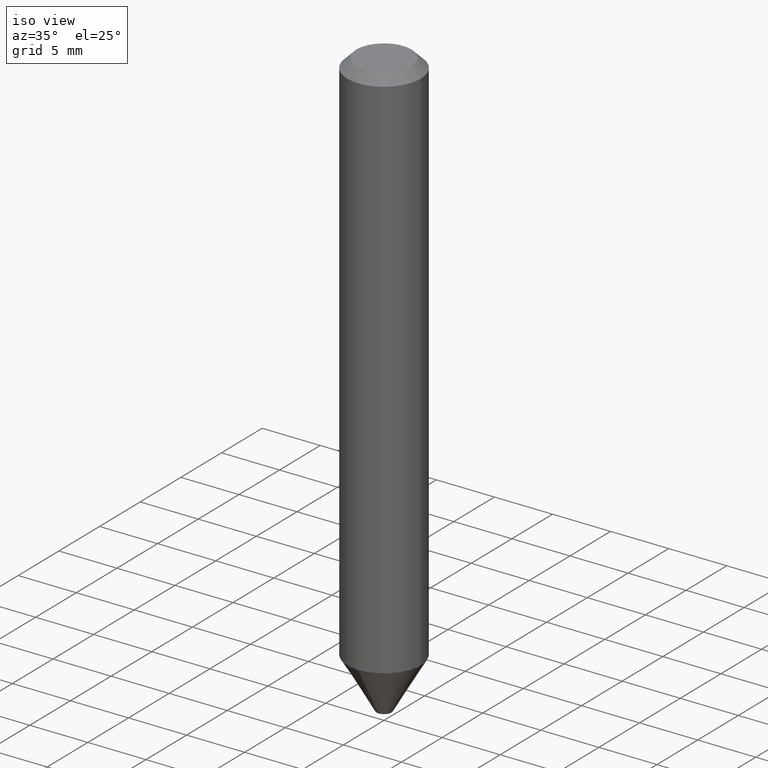
[diagram: clean part render]
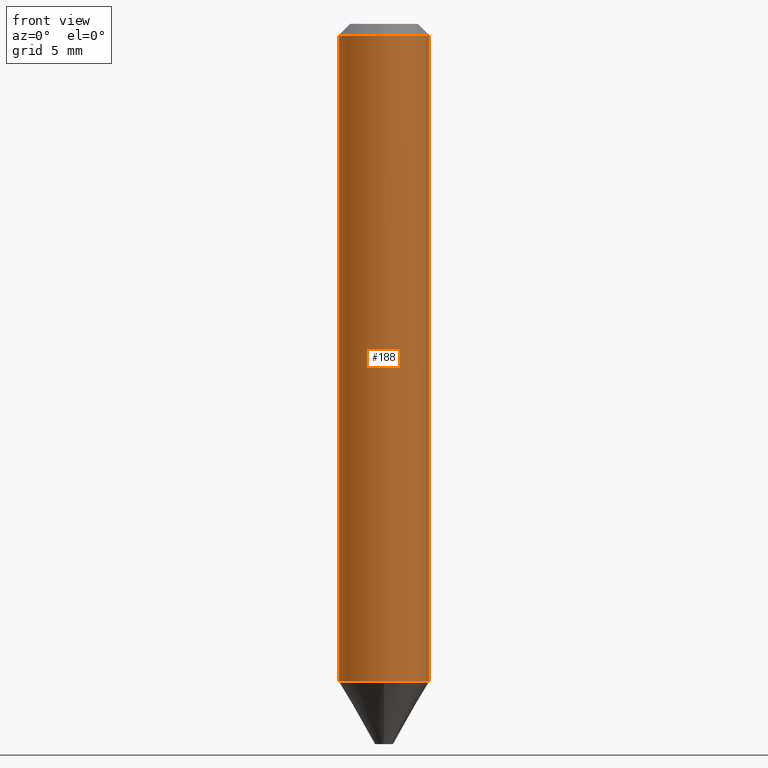
[diagram: tour spotlight — one face highlighted and labeled with its STEP entity id]
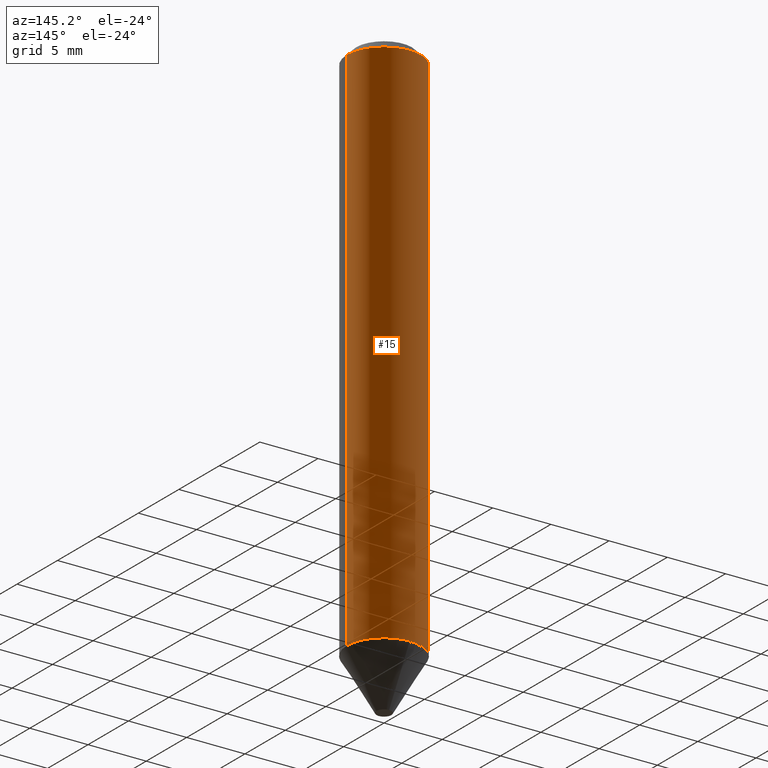
[diagram: tour spotlight — one face highlighted and labeled with its STEP entity id]
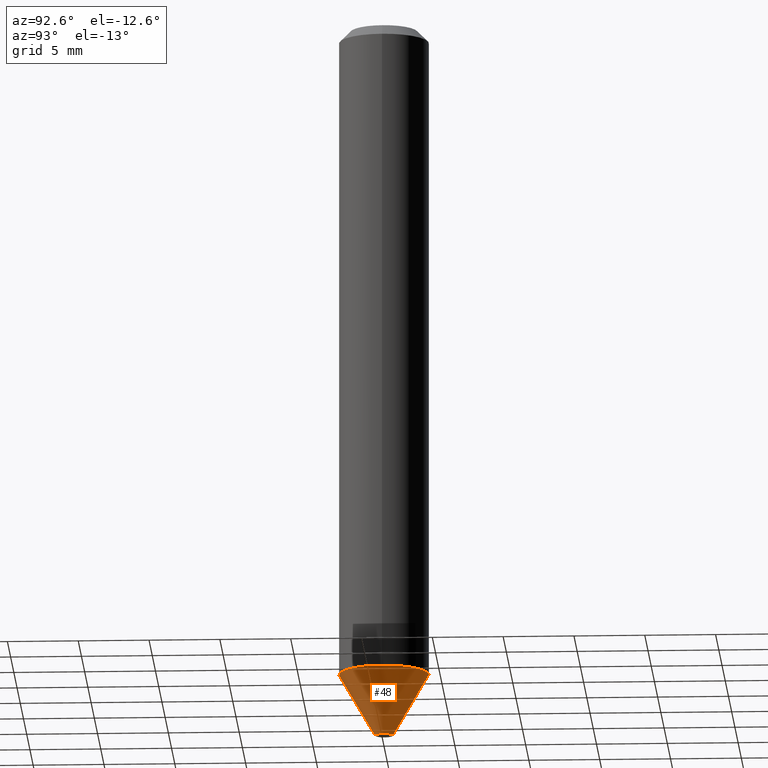
[diagram: tour spotlight — one face highlighted and labeled with its STEP entity id]
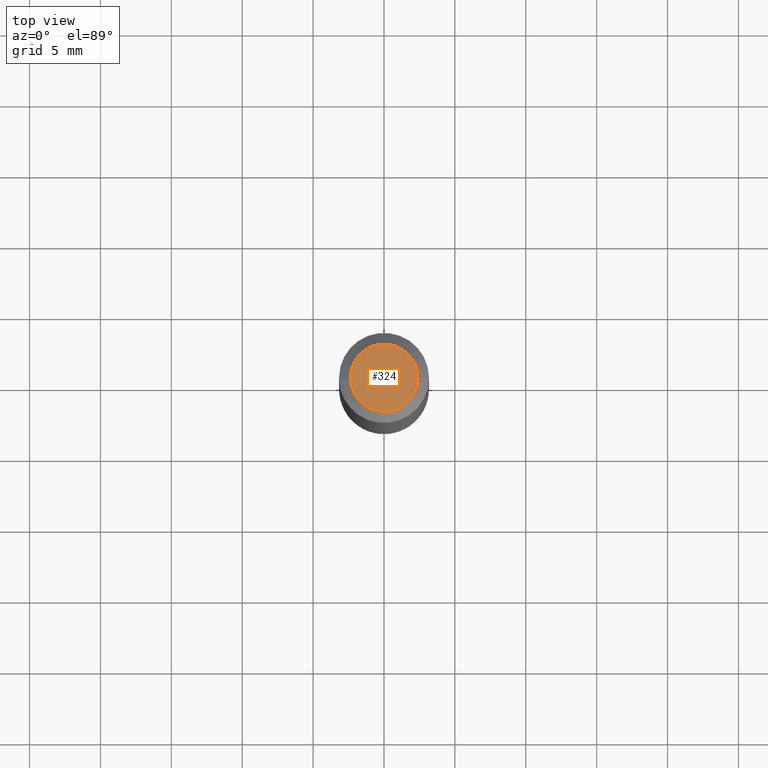
[diagram: tour spotlight — one face highlighted and labeled with its STEP entity id]
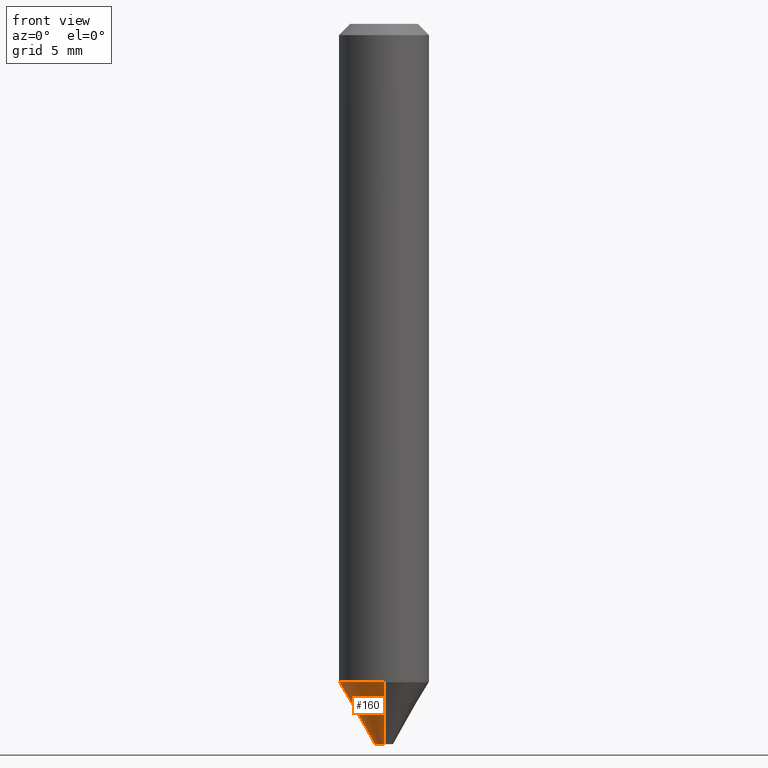
[diagram: tour spotlight — one face highlighted and labeled with its STEP entity id]
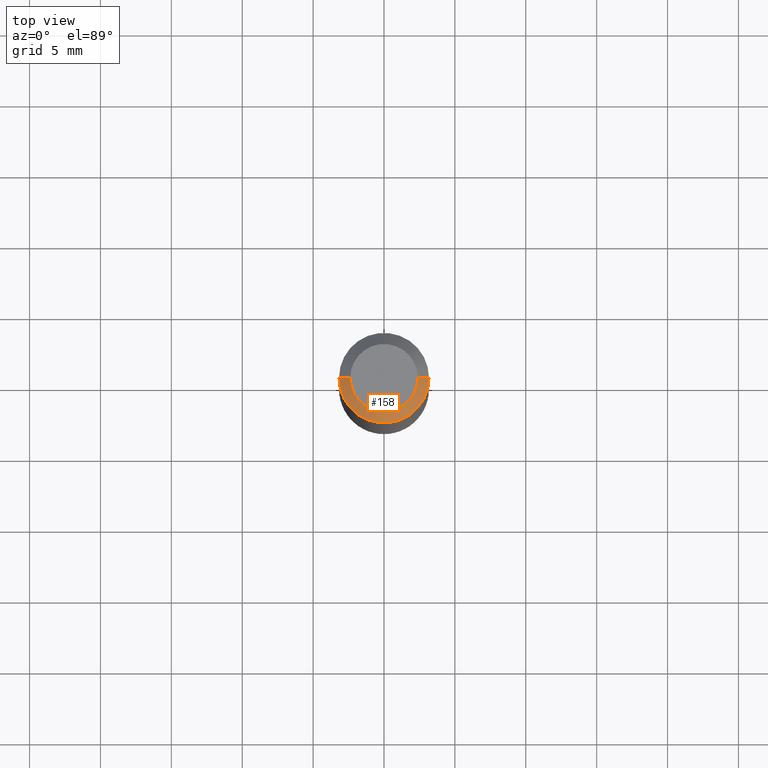
[diagram: tour spotlight — one face highlighted and labeled with its STEP entity id]
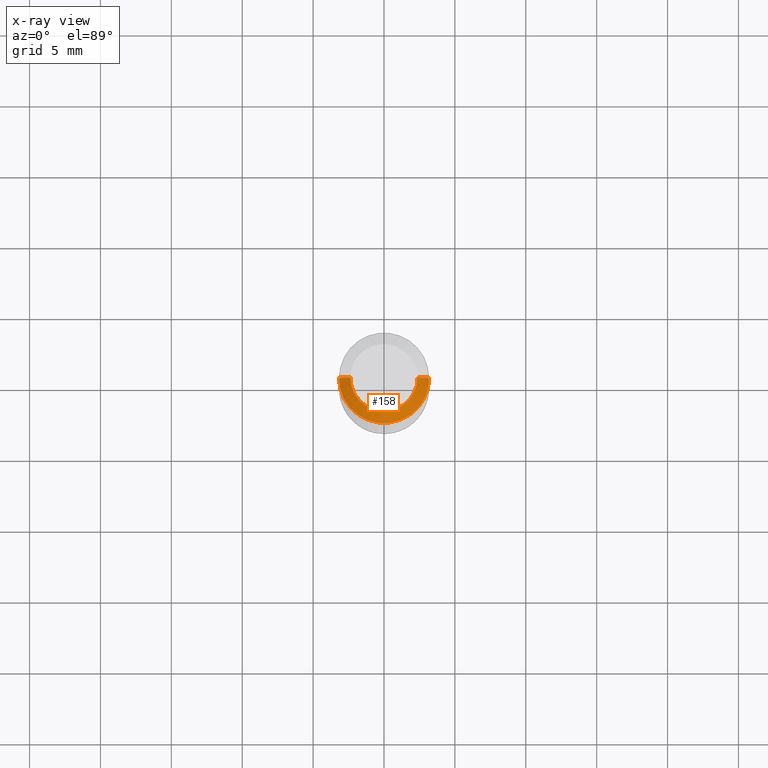
[diagram: x-ray of the same camera — body ghosted, this tour face saturated]
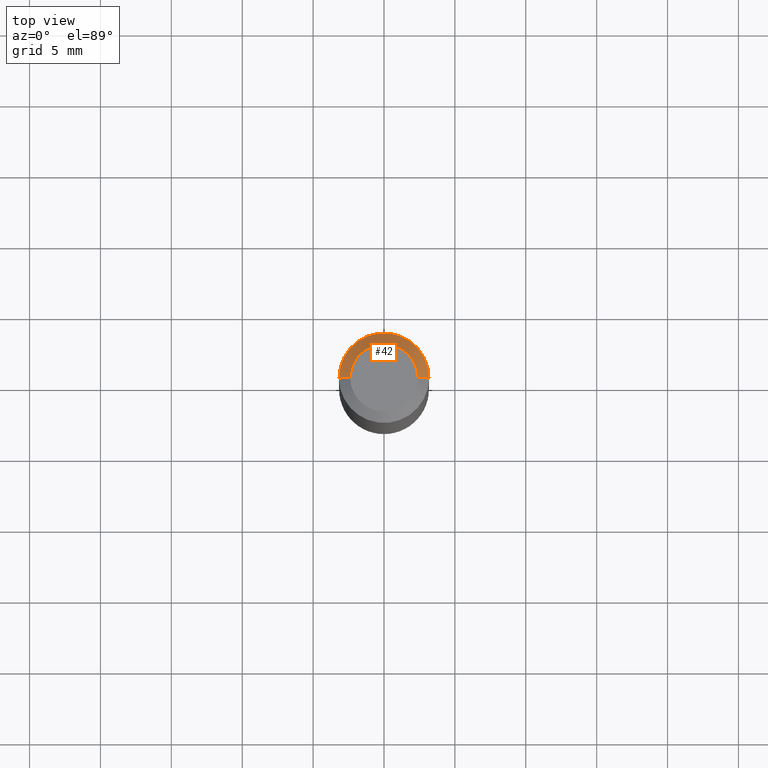
[diagram: tour spotlight — one face highlighted and labeled with its STEP entity id]
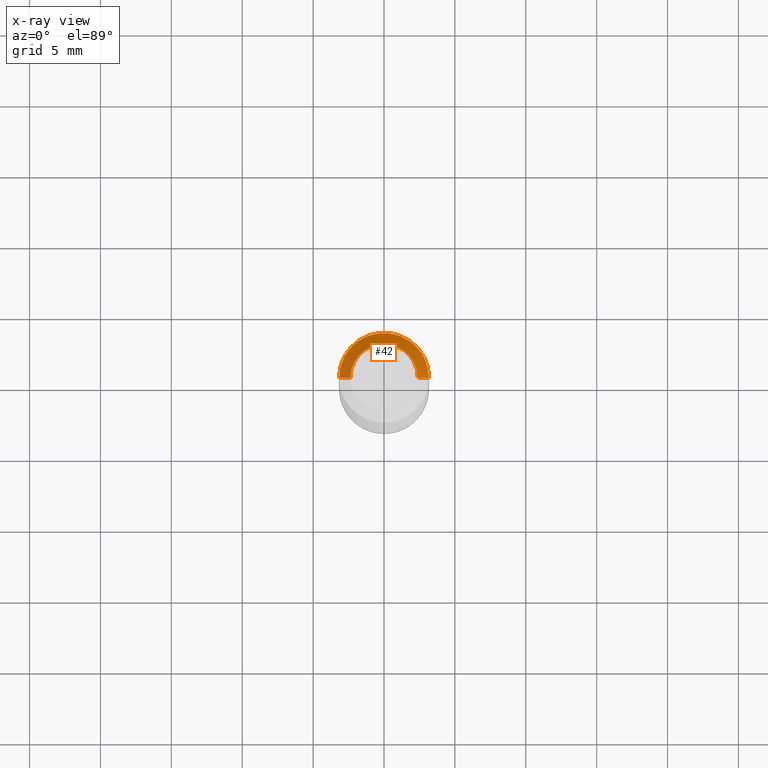
[diagram: x-ray of the same camera — body ghosted, this tour face saturated]
A machine part: a face-by-face anatomy tour. The part has 14 B-rep faces; the first image is the clean iso view, then the 7 largest visible faces are spotlighted one at a time (largest first), each with its STEP entity span.

Face 1 — front view, entity #188. In plain terms, the highlighted cylindrical surface (partial cylindrical patch) has radius 3.175 mm, axis along (-0, 0, 1).
Definition (entity closure, byte-faithful):
#5 = DIRECTION ( 'NONE',  ( -2.445468806185136597E-29, 3.491481338843145583E-15, 1.000000000000000000 ) ) ;
#11 = DIRECTION ( 'NONE',  ( -2.445468806185136597E-29, 3.491481338843145583E-15, 1.000000000000000000 ) ) ;
#21 = LINE ( 'NONE', #109, #216 ) ;
#26 = EDGE_CURVE ( 'NONE', #186, #169, #21, .T. ) ;
#57 = FACE_OUTER_BOUND ( 'NONE', #275, .T. ) ;
#78 = LINE ( 'NONE', #278, #336 ) ;
#92 = DIRECTION ( 'NONE',  ( 1.000000000000000000, -6.982962677686266711E-15, 0.000000000000000000 ) ) ;
#95 = DIRECTION ( 'NONE',  ( 1.000000000000000000, -6.982962677686267499E-15, 0.000000000000000000 ) ) ;
#109 = CARTESIAN_POINT ( 'NONE',  ( -0.1250000000000001110, 8.881784197001260212E-16, -6.148668862818637832E-30 ) ) ;
#125 = CARTESIAN_POINT ( 'NONE',  ( -0.1250000000000000000, -2.355486161434694468E-15, -0.03125000000000021511 ) ) ;
#153 = DIRECTION ( 'NONE',  ( -2.445468806185136877E-29, 3.491481338843145188E-15, 1.000000000000000000 ) ) ;
#161 = CIRCLE ( 'NONE', #224, 0.1250000000000000000 ) ;
#165 = ORIENTED_EDGE ( 'NONE', *, *, #334, .F. ) ;
#169 = VERTEX_POINT ( 'NONE', #125 ) ;
#185 = CARTESIAN_POINT ( 'NONE',  ( -0.1250000000000001943, -5.490041950730667434E-15, -1.826794919243111215 ) ) ;
#186 = VERTEX_POINT ( 'NONE', #185 ) ;
#188 = ADVANCED_FACE ( 'NONE', ( #57 ), #315, .T. ) ;
#195 = CARTESIAN_POINT ( 'NONE',  ( 0.1250000000000001943, -7.251090705141579161E-15, -1.826794919243111215 ) ) ;
#205 = ORIENTED_EDGE ( 'NONE', *, *, #252, .T. ) ;
#216 = VECTOR ( 'NONE', #238, 39.37007874015748143 ) ;
#217 = AXIS2_PLACEMENT_3D ( 'NONE', #389, #5, #95 ) ;
#224 = AXIS2_PLACEMENT_3D ( 'NONE', #295, #11, #92 ) ;
#238 = DIRECTION ( 'NONE',  ( -2.445468806185136877E-29, 3.491481338843145188E-15, 1.000000000000000000 ) ) ;
#252 = EDGE_CURVE ( 'NONE', #402, #268, #78, .T. ) ;
#256 = AXIS2_PLACEMENT_3D ( 'NONE', #351, #374, #312 ) ;
#266 = ORIENTED_EDGE ( 'NONE', *, *, #375, .T. ) ;
#268 = VERTEX_POINT ( 'NONE', #385 ) ;
#275 = EDGE_LOOP ( 'NONE', ( #327, #266, #205, #165 ) ) ;
#278 = CARTESIAN_POINT ( 'NONE',  ( 0.1250000000000001110, -8.728703347107841277E-16, 6.095220969744924646E-30 ) ) ;
#295 = CARTESIAN_POINT ( 'NONE',  ( 7.642090019328604414E-31, -1.091087918388490513E-16, -0.03125000000000021511 ) ) ;
#312 = DIRECTION ( 'NONE',  ( 1.000000000000000000, -6.982962677686266711E-15, 4.876176775795935232E-29 ) ) ;
#315 = CYLINDRICAL_SURFACE ( 'NONE', #256, 0.1250000000000001110 ) ;
#327 = ORIENTED_EDGE ( 'NONE', *, *, #26, .F. ) ;
#334 = EDGE_CURVE ( 'NONE', #169, #268, #161, .T. ) ;
#336 = VECTOR ( 'NONE', #153, 39.37007874015748143 ) ;
#351 = CARTESIAN_POINT ( 'NONE',  ( 0.000000000000000000, 0.000000000000000000, 0.000000000000000000 ) ) ;
#374 = DIRECTION ( 'NONE',  ( -2.445468806185136597E-29, 3.491481338843145583E-15, 1.000000000000000000 ) ) ;
#375 = EDGE_CURVE ( 'NONE', #186, #402, #398, .T. ) ;
#385 = CARTESIAN_POINT ( 'NONE',  ( 0.1250000000000000000, -9.819791265496324395E-16, -0.03125000000000021511 ) ) ;
#389 = CARTESIAN_POINT ( 'NONE',  ( 4.467369990306524043E-29, -6.378220370430793455E-15, -1.826794919243111215 ) ) ;
#398 = CIRCLE ( 'NONE', #217, 0.1250000000000001943 ) ;
#402 = VERTEX_POINT ( 'NONE', #195 ) ;

Face 2 — auxiliary view, entity #15. In plain terms, the highlighted cylindrical surface (partial cylindrical patch) has radius 3.175 mm, axis along (-0, 0, 1).
Definition (entity closure, byte-faithful):
#6 = EDGE_CURVE ( 'NONE', #268, #169, #108, .T. ) ;
#15 = ADVANCED_FACE ( 'NONE', ( #405 ), #77, .T. ) ;
#16 = DIRECTION ( 'NONE',  ( -2.445468806185136597E-29, 3.491481338843145583E-15, 1.000000000000000000 ) ) ;
#18 = ORIENTED_EDGE ( 'NONE', *, *, #71, .T. ) ;
#21 = LINE ( 'NONE', #109, #216 ) ;
#23 = DIRECTION ( 'NONE',  ( 1.000000000000000000, -6.982962677686266711E-15, 4.876176775795935232E-29 ) ) ;
#26 = EDGE_CURVE ( 'NONE', #186, #169, #21, .T. ) ;
#27 = DIRECTION ( 'NONE',  ( -2.445468806185136597E-29, 3.491481338843145583E-15, 1.000000000000000000 ) ) ;
#56 = DIRECTION ( 'NONE',  ( 1.000000000000000000, -6.982962677686266711E-15, 0.000000000000000000 ) ) ;
#71 = EDGE_CURVE ( 'NONE', #402, #186, #228, .T. ) ;
#72 = EDGE_LOOP ( 'NONE', ( #18, #101, #331, #208 ) ) ;
#77 = CYLINDRICAL_SURFACE ( 'NONE', #181, 0.1250000000000001110 ) ;
#78 = LINE ( 'NONE', #278, #336 ) ;
#101 = ORIENTED_EDGE ( 'NONE', *, *, #26, .T. ) ;
#108 = CIRCLE ( 'NONE', #413, 0.1250000000000000000 ) ;
#109 = CARTESIAN_POINT ( 'NONE',  ( -0.1250000000000001110, 8.881784197001260212E-16, -6.148668862818637832E-30 ) ) ;
#125 = CARTESIAN_POINT ( 'NONE',  ( -0.1250000000000000000, -2.355486161434694468E-15, -0.03125000000000021511 ) ) ;
#153 = DIRECTION ( 'NONE',  ( -2.445468806185136877E-29, 3.491481338843145188E-15, 1.000000000000000000 ) ) ;
#154 = DIRECTION ( 'NONE',  ( 1.000000000000000000, -6.982962677686267499E-15, 0.000000000000000000 ) ) ;
#169 = VERTEX_POINT ( 'NONE', #125 ) ;
#181 = AXIS2_PLACEMENT_3D ( 'NONE', #310, #349, #23 ) ;
#185 = CARTESIAN_POINT ( 'NONE',  ( -0.1250000000000001943, -5.490041950730667434E-15, -1.826794919243111215 ) ) ;
#186 = VERTEX_POINT ( 'NONE', #185 ) ;
#195 = CARTESIAN_POINT ( 'NONE',  ( 0.1250000000000001943, -7.251090705141579161E-15, -1.826794919243111215 ) ) ;
#208 = ORIENTED_EDGE ( 'NONE', *, *, #252, .F. ) ;
#216 = VECTOR ( 'NONE', #238, 39.37007874015748143 ) ;
#219 = CARTESIAN_POINT ( 'NONE',  ( 4.467369990306524043E-29, -6.378220370430793455E-15, -1.826794919243111215 ) ) ;
#228 = CIRCLE ( 'NONE', #279, 0.1250000000000001943 ) ;
#238 = DIRECTION ( 'NONE',  ( -2.445468806185136877E-29, 3.491481338843145188E-15, 1.000000000000000000 ) ) ;
#252 = EDGE_CURVE ( 'NONE', #402, #268, #78, .T. ) ;
#268 = VERTEX_POINT ( 'NONE', #385 ) ;
#278 = CARTESIAN_POINT ( 'NONE',  ( 0.1250000000000001110, -8.728703347107841277E-16, 6.095220969744924646E-30 ) ) ;
#279 = AXIS2_PLACEMENT_3D ( 'NONE', #219, #27, #154 ) ;
#310 = CARTESIAN_POINT ( 'NONE',  ( 0.000000000000000000, 0.000000000000000000, 0.000000000000000000 ) ) ;
#331 = ORIENTED_EDGE ( 'NONE', *, *, #6, .F. ) ;
#336 = VECTOR ( 'NONE', #153, 39.37007874015748143 ) ;
#349 = DIRECTION ( 'NONE',  ( -2.445468806185136597E-29, 3.491481338843145583E-15, 1.000000000000000000 ) ) ;
#373 = CARTESIAN_POINT ( 'NONE',  ( 7.642090019328604414E-31, -1.091087918388490513E-16, -0.03125000000000021511 ) ) ;
#385 = CARTESIAN_POINT ( 'NONE',  ( 0.1250000000000000000, -9.819791265496324395E-16, -0.03125000000000021511 ) ) ;
#402 = VERTEX_POINT ( 'NONE', #195 ) ;
#405 = FACE_OUTER_BOUND ( 'NONE', #72, .T. ) ;
#413 = AXIS2_PLACEMENT_3D ( 'NONE', #373, #16, #56 ) ;

Face 3 — auxiliary view, entity #48. In plain terms, the highlighted conical surface has half-angle 30.144 deg.
Definition (entity closure, byte-faithful):
#7 = CONICAL_SURFACE ( 'NONE', #138, 0.1250000000000001665, 0.5261096427181406465 ) ;
#17 = EDGE_CURVE ( 'NONE', #261, #376, #155, .T. ) ;
#48 = ADVANCED_FACE ( 'NONE', ( #371 ), #7, .T. ) ;
#51 = VERTEX_POINT ( 'NONE', #412 ) ;
#62 = CARTESIAN_POINT ( 'NONE',  ( -5.237222008264237563E-16, -0.02500000000000698885, -2.000000000000000000 ) ) ;
#69 = ORIENTED_EDGE ( 'NONE', *, *, #283, .T. ) ;
#86 = DIRECTION ( 'NONE',  ( 6.982962677686265922E-15, 1.000000000000000000, -4.370956789862815627E-15 ) ) ;
#110 = LINE ( 'NONE', #187, #335 ) ;
#118 = EDGE_CURVE ( 'NONE', #51, #133, #301, .T. ) ;
#121 = DIRECTION ( 'NONE',  ( 3.568153035714514369E-15, 0.5021728963139058255, 0.8647672416365590475 ) ) ;
#122 = AXIS2_PLACEMENT_3D ( 'NONE', #384, #416, #86 ) ;
#133 = VERTEX_POINT ( 'NONE', #403 ) ;
#136 = ORIENTED_EDGE ( 'NONE', *, *, #118, .T. ) ;
#138 = AXIS2_PLACEMENT_3D ( 'NONE', #272, #152, #277 ) ;
#139 = EDGE_LOOP ( 'NONE', ( #370, #69, #136, #171 ) ) ;
#141 = EDGE_CURVE ( 'NONE', #376, #133, #110, .T. ) ;
#152 = DIRECTION ( 'NONE',  ( -2.438655808620039328E-29, 3.501237939128104432E-15, 1.000000000000000000 ) ) ;
#155 = CIRCLE ( 'NONE', #257, 0.02500000000000000486 ) ;
#171 = ORIENTED_EDGE ( 'NONE', *, *, #141, .F. ) ;
#174 = VECTOR ( 'NONE', #121, 39.37007874015748854 ) ;
#178 = CARTESIAN_POINT ( 'NONE',  ( 8.881784197001709863E-16, 0.1249999999999937828, -1.827794919243111993 ) ) ;
#182 = LINE ( 'NONE', #178, #174 ) ;
#187 = CARTESIAN_POINT ( 'NONE',  ( -8.728703347107397543E-16, -0.1250000000000065503, -1.827794919243110883 ) ) ;
#237 = DIRECTION ( 'NONE',  ( 2.438655808620039328E-29, -3.501237939128104432E-15, -1.000000000000000000 ) ) ;
#240 = DIRECTION ( 'NONE',  ( -3.506654592705619215E-15, -0.5021728963138998303, 0.8647672416365624892 ) ) ;
#257 = AXIS2_PLACEMENT_3D ( 'NONE', #379, #237, #316 ) ;
#261 = VERTEX_POINT ( 'NONE', #339 ) ;
#272 = CARTESIAN_POINT ( 'NONE',  ( 4.469812052613927937E-29, -6.381716730069780750E-15, -1.827794919243111549 ) ) ;
#277 = DIRECTION ( 'NONE',  ( -6.982962677686265922E-15, -1.000000000000000000, 4.370956789862815627E-15 ) ) ;
#283 = EDGE_CURVE ( 'NONE', #261, #51, #182, .T. ) ;
#301 = CIRCLE ( 'NONE', #122, 0.1250000000000001665 ) ;
#316 = DIRECTION ( 'NONE',  ( 6.982962677686266711E-15, 1.000000000000000000, 0.000000000000000000 ) ) ;
#335 = VECTOR ( 'NONE', #240, 39.37007874015748854 ) ;
#339 = CARTESIAN_POINT ( 'NONE',  ( 5.329070518201224513E-16, 0.02499999999999302433, -2.000000000000000000 ) ) ;
#370 = ORIENTED_EDGE ( 'NONE', *, *, #17, .F. ) ;
#371 = FACE_OUTER_BOUND ( 'NONE', #139, .T. ) ;
#376 = VERTEX_POINT ( 'NONE', #62 ) ;
#379 = CARTESIAN_POINT ( 'NONE',  ( 4.889760973075596555E-29, -6.984647692126417987E-15, -2.000000000000000000 ) ) ;
#384 = CARTESIAN_POINT ( 'NONE',  ( 4.469812052613927937E-29, -6.381716730069780750E-15, -1.827794919243111549 ) ) ;
#403 = CARTESIAN_POINT ( 'NONE',  ( -8.575622497213985510E-16, -0.1250000000000066613, -1.827794919243110883 ) ) ;
#412 = CARTESIAN_POINT ( 'NONE',  ( 8.728703347108282053E-16, 0.1249999999999936579, -1.827794919243111993 ) ) ;
#416 = DIRECTION ( 'NONE',  ( 2.438655808620039328E-29, -3.501237939128104432E-15, -1.000000000000000000 ) ) ;

Face 4 — top view, entity #324. In plain terms, the highlighted planar face has unit normal (0, -0, -1).
Definition (entity closure, byte-faithful):
#52 = DIRECTION ( 'NONE',  ( 1.000000000000000000, -6.982962677686266711E-15, 4.875989565238656407E-29 ) ) ;
#91 = DIRECTION ( 'NONE',  ( -2.445468806185136597E-29, 3.491481338843145583E-15, 1.000000000000000000 ) ) ;
#94 = AXIS2_PLACEMENT_3D ( 'NONE', #317, #319, #52 ) ;
#99 = DIRECTION ( 'NONE',  ( 2.438088387897960049E-29, -3.491481338843145188E-15, -1.000000000000000000 ) ) ;
#107 = EDGE_LOOP ( 'NONE', ( #236, #333 ) ) ;
#126 = EDGE_CURVE ( 'NONE', #366, #246, #140, .T. ) ;
#129 = PLANE ( 'NONE',  #404 ) ;
#132 = FACE_OUTER_BOUND ( 'NONE', #107, .T. ) ;
#140 = CIRCLE ( 'NONE', #94, 0.09374999999999998612 ) ;
#163 = CARTESIAN_POINT ( 'NONE',  ( -9.358861080966640236E-47, 1.336197326842803670E-32, 3.827021247335477232E-18 ) ) ;
#199 = DIRECTION ( 'NONE',  ( -1.000000000000000000, 6.982962677686265922E-15, -4.876176775795935793E-29 ) ) ;
#229 = CARTESIAN_POINT ( 'NONE',  ( -0.09374999999999998612, 7.092071469525108711E-16, 3.827021247330707859E-18 ) ) ;
#236 = ORIENTED_EDGE ( 'NONE', *, *, #126, .T. ) ;
#246 = VERTEX_POINT ( 'NONE', #383 ) ;
#254 = CARTESIAN_POINT ( 'NONE',  ( -4.679430540483320118E-47, 6.680986634214018350E-33, 1.913510623667738616E-18 ) ) ;
#288 = DIRECTION ( 'NONE',  ( 1.000000000000000000, -6.982962677686266711E-15, 4.875989565238656407E-29 ) ) ;
#317 = CARTESIAN_POINT ( 'NONE',  ( -9.358861080966640236E-47, 1.336197326842803670E-32, 3.827021247335477232E-18 ) ) ;
#319 = DIRECTION ( 'NONE',  ( -2.445468806185136597E-29, 3.491481338843145583E-15, 1.000000000000000000 ) ) ;
#324 = ADVANCED_FACE ( 'NONE', ( #132 ), #129, .F. ) ;
#325 = CIRCLE ( 'NONE', #382, 0.09374999999999998612 ) ;
#333 = ORIENTED_EDGE ( 'NONE', *, *, #391, .T. ) ;
#366 = VERTEX_POINT ( 'NONE', #229 ) ;
#382 = AXIS2_PLACEMENT_3D ( 'NONE', #163, #91, #288 ) ;
#383 = CARTESIAN_POINT ( 'NONE',  ( 0.09374999999999998612, -8.049213644256857164E-16, 3.827021247340580176E-18 ) ) ;
#391 = EDGE_CURVE ( 'NONE', #246, #366, #325, .T. ) ;
#404 = AXIS2_PLACEMENT_3D ( 'NONE', #254, #99, #199 ) ;

Face 5 — front view, entity #160. In plain terms, the highlighted conical surface has half-angle 30.144 deg.
Definition (entity closure, byte-faithful):
#14 = ORIENTED_EDGE ( 'NONE', *, *, #283, .F. ) ;
#33 = DIRECTION ( 'NONE',  ( 2.438655808620039328E-29, -3.501237939128104432E-15, -1.000000000000000000 ) ) ;
#34 = CONICAL_SURFACE ( 'NONE', #201, 0.1250000000000001665, 0.5261096427181406465 ) ;
#51 = VERTEX_POINT ( 'NONE', #412 ) ;
#55 = DIRECTION ( 'NONE',  ( -6.982962677686265922E-15, -1.000000000000000000, 4.370956789862815627E-15 ) ) ;
#62 = CARTESIAN_POINT ( 'NONE',  ( -5.237222008264237563E-16, -0.02500000000000698885, -2.000000000000000000 ) ) ;
#66 = CARTESIAN_POINT ( 'NONE',  ( 4.889760973075596555E-29, -6.984647692126417987E-15, -2.000000000000000000 ) ) ;
#75 = EDGE_LOOP ( 'NONE', ( #14, #180, #241, #297 ) ) ;
#84 = AXIS2_PLACEMENT_3D ( 'NONE', #358, #390, #131 ) ;
#110 = LINE ( 'NONE', #187, #335 ) ;
#121 = DIRECTION ( 'NONE',  ( 3.568153035714514369E-15, 0.5021728963139058255, 0.8647672416365590475 ) ) ;
#131 = DIRECTION ( 'NONE',  ( 6.982962677686265922E-15, 1.000000000000000000, -4.370956789862815627E-15 ) ) ;
#133 = VERTEX_POINT ( 'NONE', #403 ) ;
#141 = EDGE_CURVE ( 'NONE', #376, #133, #110, .T. ) ;
#160 = ADVANCED_FACE ( 'NONE', ( #276 ), #34, .T. ) ;
#164 = DIRECTION ( 'NONE',  ( 6.982962677686266711E-15, 1.000000000000000000, 0.000000000000000000 ) ) ;
#174 = VECTOR ( 'NONE', #121, 39.37007874015748854 ) ;
#178 = CARTESIAN_POINT ( 'NONE',  ( 8.881784197001709863E-16, 0.1249999999999937828, -1.827794919243111993 ) ) ;
#180 = ORIENTED_EDGE ( 'NONE', *, *, #378, .F. ) ;
#182 = LINE ( 'NONE', #178, #174 ) ;
#187 = CARTESIAN_POINT ( 'NONE',  ( -8.728703347107397543E-16, -0.1250000000000065503, -1.827794919243110883 ) ) ;
#201 = AXIS2_PLACEMENT_3D ( 'NONE', #218, #221, #55 ) ;
#218 = CARTESIAN_POINT ( 'NONE',  ( 4.469812052613927937E-29, -6.381716730069780750E-15, -1.827794919243111549 ) ) ;
#221 = DIRECTION ( 'NONE',  ( -2.438655808620039328E-29, 3.501237939128104432E-15, 1.000000000000000000 ) ) ;
#227 = CIRCLE ( 'NONE', #84, 0.1250000000000001665 ) ;
#240 = DIRECTION ( 'NONE',  ( -3.506654592705619215E-15, -0.5021728963138998303, 0.8647672416365624892 ) ) ;
#241 = ORIENTED_EDGE ( 'NONE', *, *, #141, .T. ) ;
#261 = VERTEX_POINT ( 'NONE', #339 ) ;
#265 = CIRCLE ( 'NONE', #281, 0.02500000000000000486 ) ;
#276 = FACE_OUTER_BOUND ( 'NONE', #75, .T. ) ;
#281 = AXIS2_PLACEMENT_3D ( 'NONE', #66, #33, #164 ) ;
#283 = EDGE_CURVE ( 'NONE', #261, #51, #182, .T. ) ;
#297 = ORIENTED_EDGE ( 'NONE', *, *, #340, .T. ) ;
#335 = VECTOR ( 'NONE', #240, 39.37007874015748854 ) ;
#339 = CARTESIAN_POINT ( 'NONE',  ( 5.329070518201224513E-16, 0.02499999999999302433, -2.000000000000000000 ) ) ;
#340 = EDGE_CURVE ( 'NONE', #133, #51, #227, .T. ) ;
#358 = CARTESIAN_POINT ( 'NONE',  ( 4.469812052613927937E-29, -6.381716730069780750E-15, -1.827794919243111549 ) ) ;
#376 = VERTEX_POINT ( 'NONE', #62 ) ;
#378 = EDGE_CURVE ( 'NONE', #376, #261, #265, .T. ) ;
#390 = DIRECTION ( 'NONE',  ( 2.438655808620039328E-29, -3.501237939128104432E-15, -1.000000000000000000 ) ) ;
#403 = CARTESIAN_POINT ( 'NONE',  ( -8.575622497213985510E-16, -0.1250000000000066613, -1.827794919243110883 ) ) ;
#412 = CARTESIAN_POINT ( 'NONE',  ( 8.728703347108282053E-16, 0.1249999999999936579, -1.827794919243111993 ) ) ;

Face 6 — top view, entity #158. An x-ray twin of the same camera follows (body ghosted, this face saturated) — the face is partly hidden behind the body. In plain terms, the highlighted conical surface has half-angle 45 deg.
Definition (entity closure, byte-faithful):
#1 = CARTESIAN_POINT ( 'NONE',  ( 7.642090019328604414E-31, -1.091087918388490513E-16, -0.03125000000000021511 ) ) ;
#2 = VECTOR ( 'NONE', #60, 39.37007874015748143 ) ;
#11 = DIRECTION ( 'NONE',  ( -2.445468806185136597E-29, 3.491481338843145583E-15, 1.000000000000000000 ) ) ;
#28 = FACE_OUTER_BOUND ( 'NONE', #209, .T. ) ;
#36 = CARTESIAN_POINT ( 'NONE',  ( 0.1250000000000000000, -9.666710415602905459E-16, -0.03125000000000021511 ) ) ;
#52 = DIRECTION ( 'NONE',  ( 1.000000000000000000, -6.982962677686266711E-15, 4.875989565238656407E-29 ) ) ;
#60 = DIRECTION ( 'NONE',  ( 0.7071067811865451302, -7.319954787623248157E-15, -0.7071067811865499042 ) ) ;
#61 = CARTESIAN_POINT ( 'NONE',  ( -0.1250000000000000000, 7.637615428719342382E-16, -0.03125000000000021511 ) ) ;
#92 = DIRECTION ( 'NONE',  ( 1.000000000000000000, -6.982962677686266711E-15, 0.000000000000000000 ) ) ;
#93 = LINE ( 'NONE', #36, #2 ) ;
#94 = AXIS2_PLACEMENT_3D ( 'NONE', #317, #319, #52 ) ;
#97 = VECTOR ( 'NONE', #322, 39.37007874015748143 ) ;
#98 = ORIENTED_EDGE ( 'NONE', *, *, #334, .T. ) ;
#103 = ORIENTED_EDGE ( 'NONE', *, *, #399, .T. ) ;
#125 = CARTESIAN_POINT ( 'NONE',  ( -0.1250000000000000000, -2.355486161434694468E-15, -0.03125000000000021511 ) ) ;
#126 = EDGE_CURVE ( 'NONE', #366, #246, #140, .T. ) ;
#140 = CIRCLE ( 'NONE', #94, 0.09374999999999998612 ) ;
#156 = CONICAL_SURFACE ( 'NONE', #387, 0.1250000000000000000, 0.7853981633974449483 ) ;
#158 = ADVANCED_FACE ( 'NONE', ( #28 ), #156, .T. ) ;
#161 = CIRCLE ( 'NONE', #224, 0.1250000000000000000 ) ;
#169 = VERTEX_POINT ( 'NONE', #125 ) ;
#190 = LINE ( 'NONE', #61, #97 ) ;
#209 = EDGE_LOOP ( 'NONE', ( #299, #337, #103, #98 ) ) ;
#224 = AXIS2_PLACEMENT_3D ( 'NONE', #295, #11, #92 ) ;
#229 = CARTESIAN_POINT ( 'NONE',  ( -0.09374999999999998612, 7.092071469525108711E-16, 3.827021247330707859E-18 ) ) ;
#246 = VERTEX_POINT ( 'NONE', #383 ) ;
#268 = VERTEX_POINT ( 'NONE', #385 ) ;
#295 = CARTESIAN_POINT ( 'NONE',  ( 7.642090019328604414E-31, -1.091087918388490513E-16, -0.03125000000000021511 ) ) ;
#299 = ORIENTED_EDGE ( 'NONE', *, *, #321, .F. ) ;
#317 = CARTESIAN_POINT ( 'NONE',  ( -9.358861080966640236E-47, 1.336197326842803670E-32, 3.827021247335477232E-18 ) ) ;
#319 = DIRECTION ( 'NONE',  ( -2.445468806185136597E-29, 3.491481338843145583E-15, 1.000000000000000000 ) ) ;
#321 = EDGE_CURVE ( 'NONE', #246, #268, #93, .T. ) ;
#322 = DIRECTION ( 'NONE',  ( -0.7071067811865451302, 2.468850131082231817E-15, -0.7071067811865499042 ) ) ;
#334 = EDGE_CURVE ( 'NONE', #169, #268, #161, .T. ) ;
#337 = ORIENTED_EDGE ( 'NONE', *, *, #126, .F. ) ;
#348 = DIRECTION ( 'NONE',  ( 2.445468806185136597E-29, -3.491481338843145583E-15, -1.000000000000000000 ) ) ;
#350 = DIRECTION ( 'NONE',  ( -1.000000000000000000, 6.982962677686266711E-15, 0.000000000000000000 ) ) ;
#366 = VERTEX_POINT ( 'NONE', #229 ) ;
#383 = CARTESIAN_POINT ( 'NONE',  ( 0.09374999999999998612, -8.049213644256857164E-16, 3.827021247340580176E-18 ) ) ;
#385 = CARTESIAN_POINT ( 'NONE',  ( 0.1250000000000000000, -9.819791265496324395E-16, -0.03125000000000021511 ) ) ;
#387 = AXIS2_PLACEMENT_3D ( 'NONE', #1, #348, #350 ) ;
#399 = EDGE_CURVE ( 'NONE', #366, #169, #190, .T. ) ;

Face 7 — top view, entity #42. An x-ray twin of the same camera follows (body ghosted, this face saturated) — the face is partly hidden behind the body. In plain terms, the highlighted conical surface has half-angle 45 deg.
Definition (entity closure, byte-faithful):
#2 = VECTOR ( 'NONE', #60, 39.37007874015748143 ) ;
#6 = EDGE_CURVE ( 'NONE', #268, #169, #108, .T. ) ;
#16 = DIRECTION ( 'NONE',  ( -2.445468806185136597E-29, 3.491481338843145583E-15, 1.000000000000000000 ) ) ;
#36 = CARTESIAN_POINT ( 'NONE',  ( 0.1250000000000000000, -9.666710415602905459E-16, -0.03125000000000021511 ) ) ;
#42 = ADVANCED_FACE ( 'NONE', ( #49 ), #223, .T. ) ;
#49 = FACE_OUTER_BOUND ( 'NONE', #235, .T. ) ;
#56 = DIRECTION ( 'NONE',  ( 1.000000000000000000, -6.982962677686266711E-15, 0.000000000000000000 ) ) ;
#60 = DIRECTION ( 'NONE',  ( 0.7071067811865451302, -7.319954787623248157E-15, -0.7071067811865499042 ) ) ;
#61 = CARTESIAN_POINT ( 'NONE',  ( -0.1250000000000000000, 7.637615428719342382E-16, -0.03125000000000021511 ) ) ;
#85 = DIRECTION ( 'NONE',  ( -1.000000000000000000, 6.982962677686266711E-15, 0.000000000000000000 ) ) ;
#91 = DIRECTION ( 'NONE',  ( -2.445468806185136597E-29, 3.491481338843145583E-15, 1.000000000000000000 ) ) ;
#93 = LINE ( 'NONE', #36, #2 ) ;
#97 = VECTOR ( 'NONE', #322, 39.37007874015748143 ) ;
#108 = CIRCLE ( 'NONE', #413, 0.1250000000000000000 ) ;
#120 = AXIS2_PLACEMENT_3D ( 'NONE', #149, #177, #85 ) ;
#125 = CARTESIAN_POINT ( 'NONE',  ( -0.1250000000000000000, -2.355486161434694468E-15, -0.03125000000000021511 ) ) ;
#149 = CARTESIAN_POINT ( 'NONE',  ( 7.642090019328604414E-31, -1.091087918388490513E-16, -0.03125000000000021511 ) ) ;
#163 = CARTESIAN_POINT ( 'NONE',  ( -9.358861080966640236E-47, 1.336197326842803670E-32, 3.827021247335477232E-18 ) ) ;
#169 = VERTEX_POINT ( 'NONE', #125 ) ;
#177 = DIRECTION ( 'NONE',  ( 2.445468806185136597E-29, -3.491481338843145583E-15, -1.000000000000000000 ) ) ;
#190 = LINE ( 'NONE', #61, #97 ) ;
#212 = ORIENTED_EDGE ( 'NONE', *, *, #6, .T. ) ;
#223 = CONICAL_SURFACE ( 'NONE', #120, 0.1250000000000000000, 0.7853981633974449483 ) ;
#229 = CARTESIAN_POINT ( 'NONE',  ( -0.09374999999999998612, 7.092071469525108711E-16, 3.827021247330707859E-18 ) ) ;
#235 = EDGE_LOOP ( 'NONE', ( #396, #365, #212, #330 ) ) ;
#246 = VERTEX_POINT ( 'NONE', #383 ) ;
#268 = VERTEX_POINT ( 'NONE', #385 ) ;
#288 = DIRECTION ( 'NONE',  ( 1.000000000000000000, -6.982962677686266711E-15, 4.875989565238656407E-29 ) ) ;
#321 = EDGE_CURVE ( 'NONE', #246, #268, #93, .T. ) ;
#322 = DIRECTION ( 'NONE',  ( -0.7071067811865451302, 2.468850131082231817E-15, -0.7071067811865499042 ) ) ;
#325 = CIRCLE ( 'NONE', #382, 0.09374999999999998612 ) ;
#330 = ORIENTED_EDGE ( 'NONE', *, *, #399, .F. ) ;
#365 = ORIENTED_EDGE ( 'NONE', *, *, #321, .T. ) ;
#366 = VERTEX_POINT ( 'NONE', #229 ) ;
#373 = CARTESIAN_POINT ( 'NONE',  ( 7.642090019328604414E-31, -1.091087918388490513E-16, -0.03125000000000021511 ) ) ;
#382 = AXIS2_PLACEMENT_3D ( 'NONE', #163, #91, #288 ) ;
#383 = CARTESIAN_POINT ( 'NONE',  ( 0.09374999999999998612, -8.049213644256857164E-16, 3.827021247340580176E-18 ) ) ;
#385 = CARTESIAN_POINT ( 'NONE',  ( 0.1250000000000000000, -9.819791265496324395E-16, -0.03125000000000021511 ) ) ;
#391 = EDGE_CURVE ( 'NONE', #246, #366, #325, .T. ) ;
#396 = ORIENTED_EDGE ( 'NONE', *, *, #391, .F. ) ;
#399 = EDGE_CURVE ( 'NONE', #366, #169, #190, .T. ) ;
#413 = AXIS2_PLACEMENT_3D ( 'NONE', #373, #16, #56 ) ;